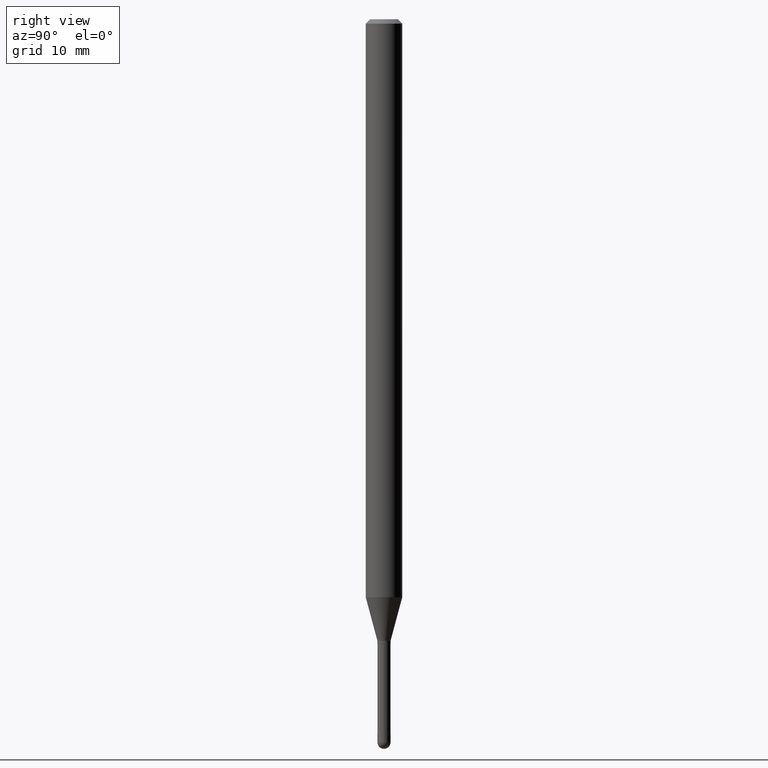
[diagram: clean part render]
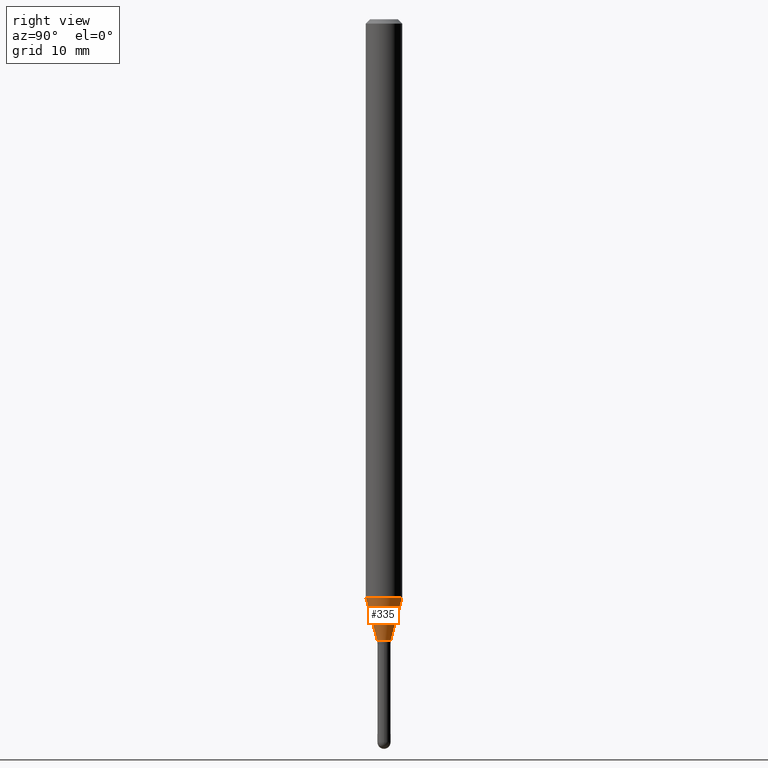
[diagram: same view with one face highlighted and labeled with its STEP entity id]
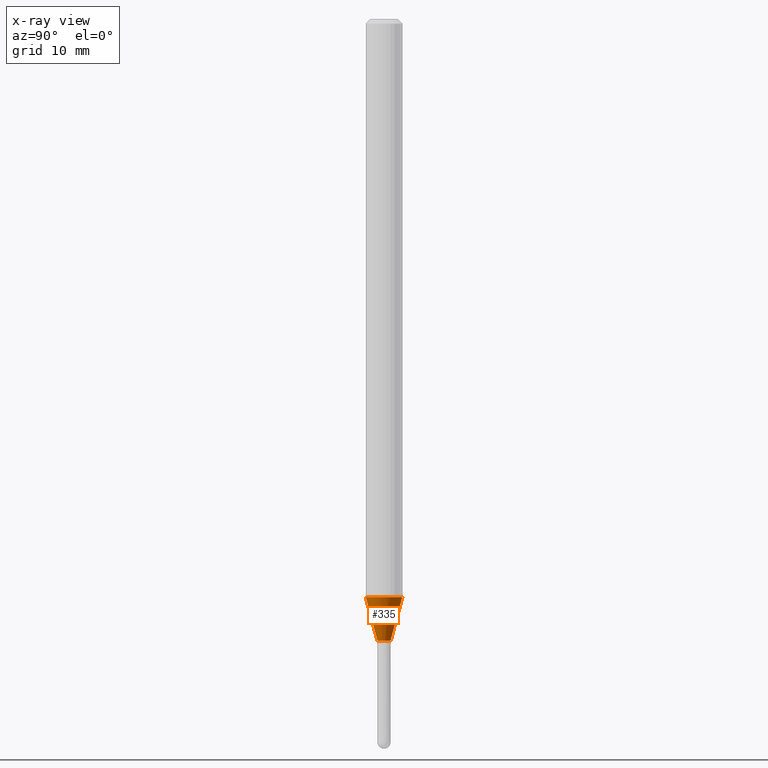
[diagram: x-ray of the same camera — body ghosted, the highlighted face saturated]
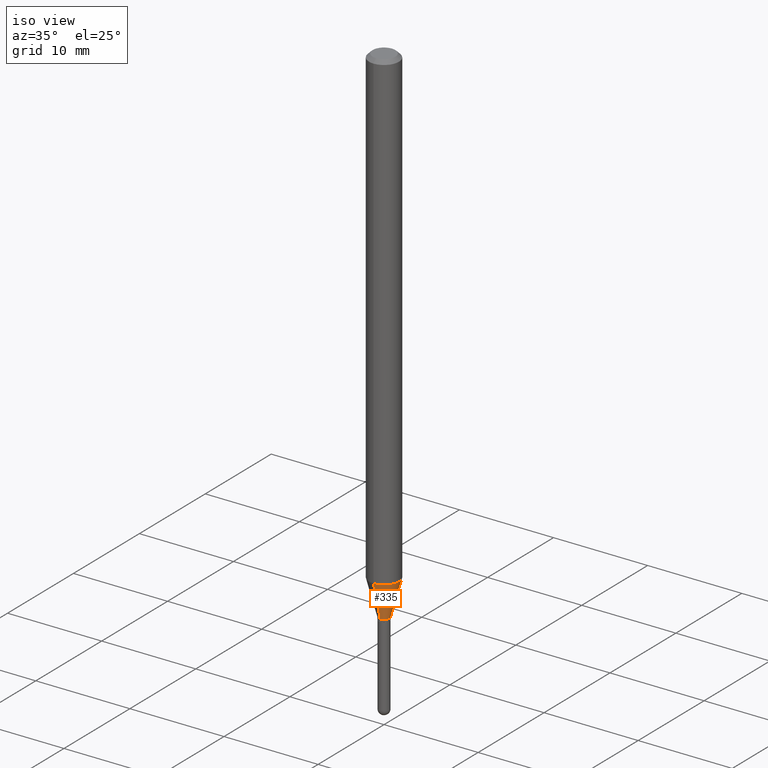
[diagram: same view with one face highlighted and labeled with its STEP entity id]
A machine part, right view. The second image highlights one B-rep face of the part: STEP entity #335.
The next image is the same camera in x-ray: the body ghosted, the highlighted face saturated — about 0% of this face is hidden behind the body in this view.
A second angle (iso view) of the same face is appended — the face is thin or edge-on in the first view.
In plain terms, the highlighted conical surface has half-angle 15 deg.
Its self-contained STEP definition (entity closure, byte-faithful):
#5 = FACE_OUTER_BOUND ( 'NONE', #480, .T. ) ;
#7 = AXIS2_PLACEMENT_3D ( 'NONE', #168, #349, #257 ) ;
#38 = VERTEX_POINT ( 'NONE', #365 ) ;
#48 = CIRCLE ( 'NONE', #375, 0.02249999999999964875 ) ;
#61 = AXIS2_PLACEMENT_3D ( 'NONE', #115, #301, #344 ) ;
#99 = ORIENTED_EDGE ( 'NONE', *, *, #227, .T. ) ;
#115 = CARTESIAN_POINT ( 'NONE',  ( 4.843688895711374227E-29, -6.915776021999746285E-15, -1.980717967697243731 ) ) ;
#141 = DIRECTION ( 'NONE',  ( -1.807323732225331717E-15, -0.2588190451025184080, 0.9659258262890689783 ) ) ;
#168 = CARTESIAN_POINT ( 'NONE',  ( 5.208746280955738477E-29, -7.437001717102136463E-15, -2.129999999999999449 ) ) ;
#178 = EDGE_CURVE ( 'NONE', #451, #38, #232, .T. ) ;
#197 = LINE ( 'NONE', #347, #501 ) ;
#200 = CARTESIAN_POINT ( 'NONE',  ( 5.208746280955738477E-29, -7.437001717102136463E-15, -2.129999999999999449 ) ) ;
#206 = ORIENTED_EDGE ( 'NONE', *, *, #400, .T. ) ;
#214 = CONICAL_SURFACE ( 'NONE', #7, 0.02249999999999964875, 0.2617993877991505181 ) ;
#224 = DIRECTION ( 'NONE',  ( 1.839019923739601893E-15, 0.2588190451025252359, 0.9659258262890670910 ) ) ;
#225 = VERTEX_POINT ( 'NONE', #472 ) ;
#227 = EDGE_CURVE ( 'NONE', #451, #225, #48, .T. ) ;
#232 = LINE ( 'NONE', #374, #368 ) ;
#257 = DIRECTION ( 'NONE',  ( -6.982962677686266711E-15, -1.000000000000000000, 0.000000000000000000 ) ) ;
#266 = ORIENTED_EDGE ( 'NONE', *, *, #178, .F. ) ;
#282 = CIRCLE ( 'NONE', #61, 0.06250000000000000000 ) ;
#301 = DIRECTION ( 'NONE',  ( -2.445420789181098238E-29, 3.491550101925886841E-15, 1.000000000000000000 ) ) ;
#318 = DIRECTION ( 'NONE',  ( -2.445420789181098238E-29, 3.491550101925886841E-15, 1.000000000000000000 ) ) ;
#335 = ADVANCED_FACE ( 'NONE', ( #5 ), #214, .T. ) ;
#344 = DIRECTION ( 'NONE',  ( -6.982962677686265922E-15, -1.000000000000000000, 4.370956789862821150E-15 ) ) ;
#347 = CARTESIAN_POINT ( 'NONE',  ( 1.598721155460720862E-16, 0.02249999999999221373, -2.129999999999999449 ) ) ;
#349 = DIRECTION ( 'NONE',  ( -2.445420789181098238E-29, 3.491550101925886841E-15, 1.000000000000000000 ) ) ;
#365 = CARTESIAN_POINT ( 'NONE',  ( -4.364351673553434010E-16, -0.06250000000000693889, -1.980717967697243287 ) ) ;
#368 = VECTOR ( 'NONE', #141, 39.37007874015748854 ) ;
#374 = CARTESIAN_POINT ( 'NONE',  ( -1.571166602478864611E-16, -0.02250000000000708378, -2.129999999999999449 ) ) ;
#375 = AXIS2_PLACEMENT_3D ( 'NONE', #200, #318, #476 ) ;
#400 = EDGE_CURVE ( 'NONE', #225, #462, #197, .T. ) ;
#439 = EDGE_CURVE ( 'NONE', #38, #462, #282, .T. ) ;
#451 = VERTEX_POINT ( 'NONE', #497 ) ;
#462 = VERTEX_POINT ( 'NONE', #465 ) ;
#465 = CARTESIAN_POINT ( 'NONE',  ( 4.440892098501108353E-16, 0.06249999999999306804, -1.980717967697243953 ) ) ;
#472 = CARTESIAN_POINT ( 'NONE',  ( 3.019806626980916580E-16, 0.02249999999999221373, -2.129999999999999449 ) ) ;
#476 = DIRECTION ( 'NONE',  ( -6.982962677686266711E-15, -1.000000000000000000, 0.000000000000000000 ) ) ;
#480 = EDGE_LOOP ( 'NONE', ( #99, #206, #498, #266 ) ) ;
#497 = CARTESIAN_POINT ( 'NONE',  ( -1.571166602478864611E-16, -0.02250000000000708378, -2.129999999999999449 ) ) ;
#498 = ORIENTED_EDGE ( 'NONE', *, *, #439, .F. ) ;
#501 = VECTOR ( 'NONE', #224, 39.37007874015748854 ) ;